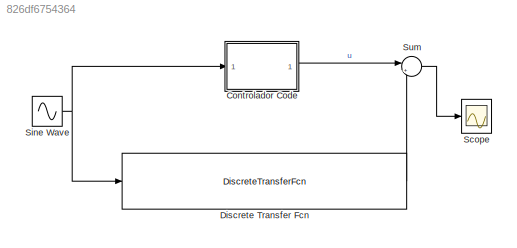
MODEL slx_826df6754364
KIND model
CONFIG AbsTol = auto
CONFIG EnableMultiTasking = off
CONFIG FixedStep = auto
CONFIG MaxStep = auto
CONFIG MinStep = auto
CONFIG RelTol = 1e-3
CONFIG SampleTimeConstraint = Unconstrained
CONFIG SolverName = VariableStepAuto
CONFIG StartTime = 0.0
CONFIG StopTime = 10.0
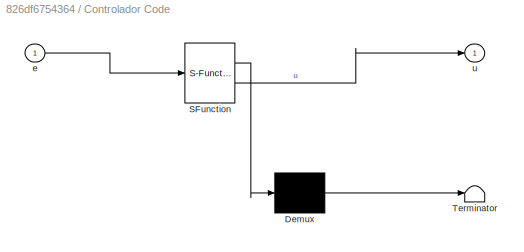
BLOCK [SubSystem] Controlador Code
  ErrorFcn = Stateflow.Translate.translate
  PermitHierarchicalResolution = ExplicitOnly
  Ports = [1, 1]
  RequestExecContextInheritance = off
  SFBlockType = MATLAB Function
  TreatAsAtomicUnit = on
BLOCK [Demux] Controlador Code/ Demux 
  Outputs = 1
  Ports = [1, 1]
BLOCK [S-Function] Controlador Code/ SFunction 
  EnableBusSupport = on
  FunctionName = sf_sfun
  PortCounts = [1 2]
  Ports = [1, 2]
  SFcnIsStateOwnerBlock = off
  SFunctionDeploymentMode = off
  Tag = Stateflow S-Function 2
BLOCK [Terminator] Controlador Code/ Terminator 
BLOCK [Inport] Controlador Code/e
BLOCK [Outport] Controlador Code/u
BLOCK [DiscreteTransferFcn] Discrete Transfer Fcn
  Denominator = [500,-500,0]
  InputPortMap = u0
  Numerator = [750500,-1375000,625000]
  Ports = [1, 1]
  SampleTime = 1/500
BLOCK [Scope] Scope
  Floating = off
  NumInputPorts = 1
  Ports = [1]
  ScopeSpecificationString = Simulink.scopes.TimeScopeBlockCfg('CurrentConfiguration', extmgr.ConfigurationSet(extmgr.Configuration('Core','General UI',true),extmgr.Configuration('Core','Source UI',true),extmgr.Configuration('Sources','WiredSimulink',true),extmgr.Configuration('Visuals','Time Domain',true,'SerializedDisplays',{struct('MinYLimReal','-0.0000000008','MaxYLimReal','0.0000000008','YLabelReal','','MinYLimMag','0.00...<+1393ch>
BLOCK [Sin] Sine Wave
  Ports = [0, 1]
  SampleTime = 1/500
BLOCK [Sum] Sum
  Inputs = |+-
  Ports = [2, 1]
LINE Controlador Code:1 -> Sum:1
LINE Discrete Transfer Fcn:1 -> Sum:2
NET Sine Wave:1 -> Controlador Code:1, Discrete Transfer Fcn:1
LINE Sum:1 -> Scope:1
note: NET lines group one-source signal fan-out (src -> all destinations, sorted); 1:1 wires keep LINE
CHART Controlador Code states=1 transitions=1
  STATE_LABEL 'eML_blk_kernel()'
  STATE_LABEL 'SCRIPT:\nfunction u = fcn(e)\n    persistent  sk e_1\n    T = 1/500;\n    kp = 250;\n    ki = 500;\n    kd = 2.5;\n        \n    if isempty(sk)\n        sk = 0;\n    end\n    if isempty(e_1)\n        e_1 = 0;\n    end\n    \n    sk = sk + e*T; \n    saida = kp*e + (kd/T) * (e - e_1) + ki * sk;\n\te_1 = e;\nu = saida;\n'
CHART  states=0 transitions=0
